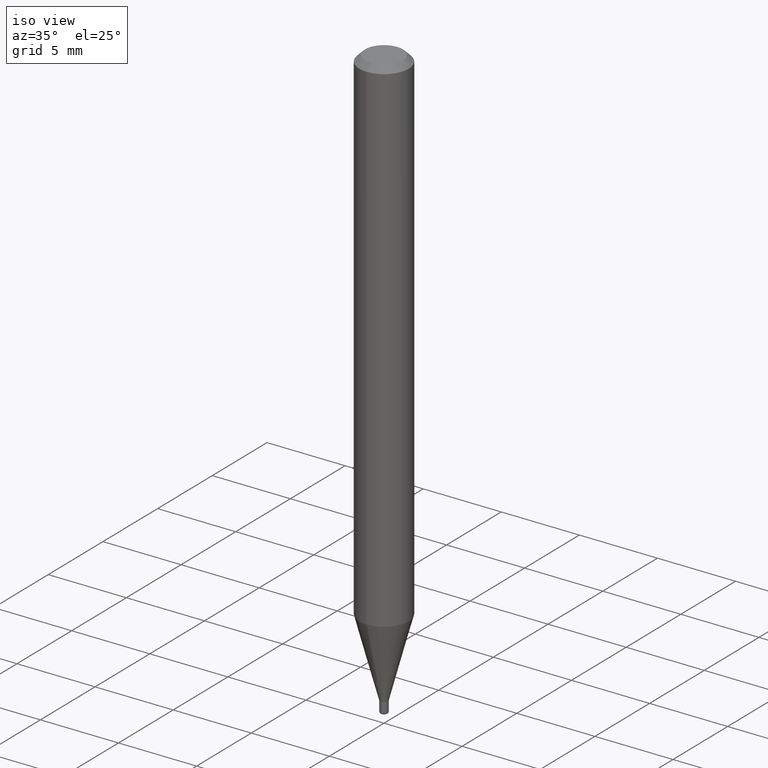
[diagram: clean part render]
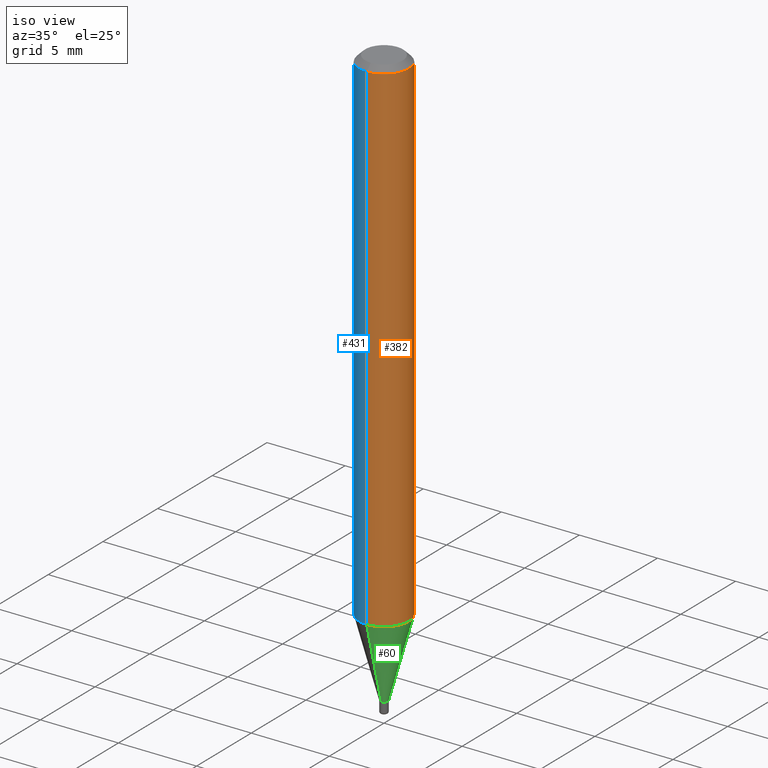
[diagram: same view with three faces highlighted in distinct colors, each labeled with its STEP entity id]
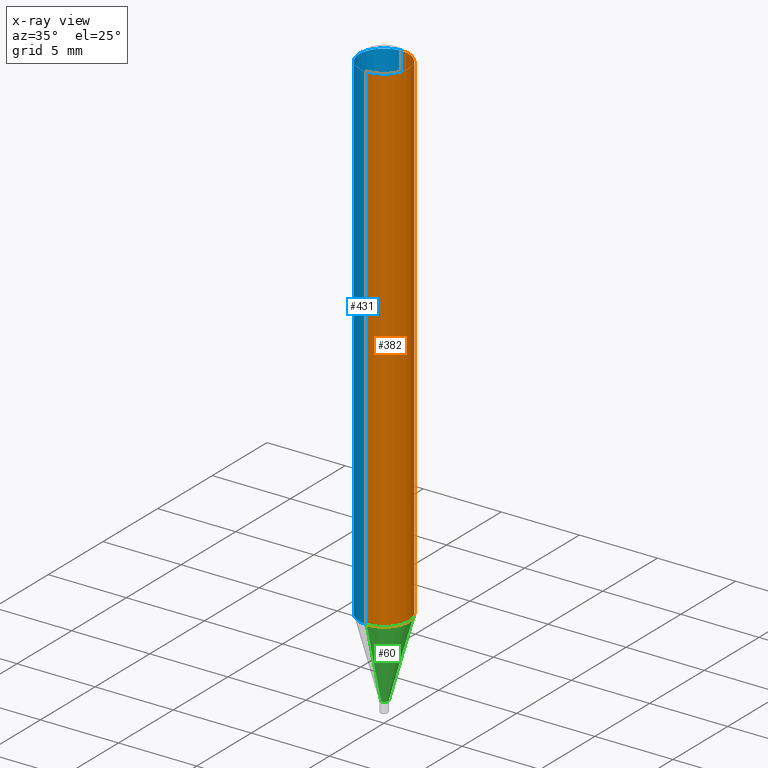
[diagram: x-ray of the same camera — body ghosted, the three highlighted faces saturated]
A machine part, iso view with three faces highlighted in distinct colors.
The next image is the same camera in x-ray (body ghosted, the three faces saturated) — at least one of them is partly hidden behind the body in this view.
Their STEP definitions:

[orange] entity #382 — the highlighted cylindrical surface (edge-blend (fillet) strip) has radius 1.5875 mm, axis along (-0, 0, 1).
#1 = CARTESIAN_POINT ( 'NONE',  ( 4.440892098500935790E-16, 0.06249999999999554523, -1.274067332602635050 ) ) ;
#2 = EDGE_LOOP ( 'NONE', ( #495, #21, #121, #81 ) ) ;
#21 = ORIENTED_EDGE ( 'NONE', *, *, #505, .T. ) ;
#24 = FACE_OUTER_BOUND ( 'NONE', #2, .T. ) ;
#29 = CARTESIAN_POINT ( 'NONE',  ( 0.000000000000000000, 0.000000000000000000, 0.000000000000000000 ) ) ;
#32 = CIRCLE ( 'NONE', #502, 0.06250000000000000000 ) ;
#50 = CARTESIAN_POINT ( 'NONE',  ( 3.115753968450635756E-29, -4.448293457665250698E-15, -1.274067332602634828 ) ) ;
#53 = DIRECTION ( 'NONE',  ( -2.445517508157003732E-29, 3.491411594847488118E-15, 1.000000000000000000 ) ) ;
#63 = VERTEX_POINT ( 'NONE', #1 ) ;
#64 = CYLINDRICAL_SURFACE ( 'NONE', #404, 0.06250000000000000000 ) ;
#81 = ORIENTED_EDGE ( 'NONE', *, *, #363, .F. ) ;
#102 = DIRECTION ( 'NONE',  ( -2.445517508157003732E-29, 3.491411594847488118E-15, 1.000000000000000000 ) ) ;
#109 = CARTESIAN_POINT ( 'NONE',  ( -4.364351673553916201E-16, -0.06250000000000000000, 2.182132246779680074E-16 ) ) ;
#110 = EDGE_CURVE ( 'NONE', #485, #63, #183, .T. ) ;
#121 = ORIENTED_EDGE ( 'NONE', *, *, #290, .F. ) ;
#134 = AXIS2_PLACEMENT_3D ( 'NONE', #50, #53, #257 ) ;
#183 = CIRCLE ( 'NONE', #134, 0.06250000000000000000 ) ;
#241 = DIRECTION ( 'NONE',  ( -2.445517508157003732E-29, 3.491411594847488118E-15, 1.000000000000000000 ) ) ;
#257 = DIRECTION ( 'NONE',  ( -6.982962677686265922E-15, -1.000000000000000000, 4.370956789862821150E-15 ) ) ;
#260 = LINE ( 'NONE', #376, #337 ) ;
#290 = EDGE_CURVE ( 'NONE', #446, #360, #32, .T. ) ;
#309 = LINE ( 'NONE', #109, #497 ) ;
#334 = DIRECTION ( 'NONE',  ( -2.445517508157004013E-29, 3.491411594847488118E-15, 1.000000000000000000 ) ) ;
#337 = VECTOR ( 'NONE', #334, 39.37007874015748143 ) ;
#351 = CARTESIAN_POINT ( 'NONE',  ( -4.364351673553912750E-16, -0.06250000000000005551, -0.01500000000000003240 ) ) ;
#360 = VERTEX_POINT ( 'NONE', #430 ) ;
#363 = EDGE_CURVE ( 'NONE', #485, #446, #309, .T. ) ;
#376 = CARTESIAN_POINT ( 'NONE',  ( 4.440892098500625669E-16, 0.06250000000000000000, -2.182132246779680074E-16 ) ) ;
#382 = ADVANCED_FACE ( 'NONE', ( #24 ), #64, .T. ) ;
#404 = AXIS2_PLACEMENT_3D ( 'NONE', #29, #102, #471 ) ;
#430 = CARTESIAN_POINT ( 'NONE',  ( 4.440892098500939734E-16, 0.06249999999999995143, -0.01500000000000046782 ) ) ;
#446 = VERTEX_POINT ( 'NONE', #351 ) ;
#471 = DIRECTION ( 'NONE',  ( -6.982962677686265922E-15, -1.000000000000000000, 3.491411594847488118E-15 ) ) ;
#472 = DIRECTION ( 'NONE',  ( -2.445517508157004013E-29, 3.491411594847488118E-15, 1.000000000000000000 ) ) ;
#485 = VERTEX_POINT ( 'NONE', #490 ) ;
#487 = DIRECTION ( 'NONE',  ( -6.982962677686265922E-15, -1.000000000000000000, 3.483106191921935554E-15 ) ) ;
#490 = CARTESIAN_POINT ( 'NONE',  ( -4.364351673553604601E-16, -0.06250000000000444089, -1.274067332602634384 ) ) ;
#495 = ORIENTED_EDGE ( 'NONE', *, *, #110, .T. ) ;
#497 = VECTOR ( 'NONE', #472, 39.37007874015748143 ) ;
#502 = AXIS2_PLACEMENT_3D ( 'NONE', #514, #241, #487 ) ;
#505 = EDGE_CURVE ( 'NONE', #63, #360, #260, .T. ) ;
#514 = CARTESIAN_POINT ( 'NONE',  ( 3.668276262235566117E-31, -5.237117392271319346E-17, -0.01500000000000024925 ) ) ;

[blue] entity #431 — the highlighted cylindrical surface (edge-blend (fillet) strip) has radius 1.5875 mm, axis along (-0, 0, 1).
#1 = CARTESIAN_POINT ( 'NONE',  ( 4.440892098500935790E-16, 0.06249999999999554523, -1.274067332602635050 ) ) ;
#3 = DIRECTION ( 'NONE',  ( -2.445517508157003732E-29, 3.491411594847488118E-15, 1.000000000000000000 ) ) ;
#33 = DIRECTION ( 'NONE',  ( -2.445517508157003732E-29, 3.491411594847488118E-15, 1.000000000000000000 ) ) ;
#63 = VERTEX_POINT ( 'NONE', #1 ) ;
#66 = DIRECTION ( 'NONE',  ( -6.982962677686265922E-15, -1.000000000000000000, 3.491411594847488118E-15 ) ) ;
#109 = CARTESIAN_POINT ( 'NONE',  ( -4.364351673553916201E-16, -0.06250000000000000000, 2.182132246779680074E-16 ) ) ;
#149 = ORIENTED_EDGE ( 'NONE', *, *, #505, .F. ) ;
#193 = AXIS2_PLACEMENT_3D ( 'NONE', #474, #305, #66 ) ;
#195 = DIRECTION ( 'NONE',  ( -6.982962677686265922E-15, -1.000000000000000000, 3.483106191921935554E-15 ) ) ;
#205 = CARTESIAN_POINT ( 'NONE',  ( 3.115753968450635756E-29, -4.448293457665250698E-15, -1.274067332602634828 ) ) ;
#221 = CIRCLE ( 'NONE', #358, 0.06250000000000000000 ) ;
#232 = EDGE_LOOP ( 'NONE', ( #149, #425, #364, #486 ) ) ;
#258 = EDGE_CURVE ( 'NONE', #360, #446, #221, .T. ) ;
#260 = LINE ( 'NONE', #376, #337 ) ;
#305 = DIRECTION ( 'NONE',  ( -2.445517508157003732E-29, 3.491411594847488118E-15, 1.000000000000000000 ) ) ;
#307 = FACE_OUTER_BOUND ( 'NONE', #232, .T. ) ;
#309 = LINE ( 'NONE', #109, #497 ) ;
#312 = CIRCLE ( 'NONE', #335, 0.06250000000000000000 ) ;
#323 = EDGE_CURVE ( 'NONE', #63, #485, #312, .T. ) ;
#334 = DIRECTION ( 'NONE',  ( -2.445517508157004013E-29, 3.491411594847488118E-15, 1.000000000000000000 ) ) ;
#335 = AXIS2_PLACEMENT_3D ( 'NONE', #205, #3, #445 ) ;
#337 = VECTOR ( 'NONE', #334, 39.37007874015748143 ) ;
#351 = CARTESIAN_POINT ( 'NONE',  ( -4.364351673553912750E-16, -0.06250000000000005551, -0.01500000000000003240 ) ) ;
#358 = AXIS2_PLACEMENT_3D ( 'NONE', #438, #33, #195 ) ;
#360 = VERTEX_POINT ( 'NONE', #430 ) ;
#363 = EDGE_CURVE ( 'NONE', #485, #446, #309, .T. ) ;
#364 = ORIENTED_EDGE ( 'NONE', *, *, #363, .T. ) ;
#376 = CARTESIAN_POINT ( 'NONE',  ( 4.440892098500625669E-16, 0.06250000000000000000, -2.182132246779680074E-16 ) ) ;
#425 = ORIENTED_EDGE ( 'NONE', *, *, #323, .T. ) ;
#430 = CARTESIAN_POINT ( 'NONE',  ( 4.440892098500939734E-16, 0.06249999999999995143, -0.01500000000000046782 ) ) ;
#431 = ADVANCED_FACE ( 'NONE', ( #307 ), #499, .T. ) ;
#438 = CARTESIAN_POINT ( 'NONE',  ( 3.668276262235566117E-31, -5.237117392271319346E-17, -0.01500000000000024925 ) ) ;
#445 = DIRECTION ( 'NONE',  ( -6.982962677686265922E-15, -1.000000000000000000, 4.370956789862821150E-15 ) ) ;
#446 = VERTEX_POINT ( 'NONE', #351 ) ;
#472 = DIRECTION ( 'NONE',  ( -2.445517508157004013E-29, 3.491411594847488118E-15, 1.000000000000000000 ) ) ;
#474 = CARTESIAN_POINT ( 'NONE',  ( 0.000000000000000000, 0.000000000000000000, 0.000000000000000000 ) ) ;
#485 = VERTEX_POINT ( 'NONE', #490 ) ;
#486 = ORIENTED_EDGE ( 'NONE', *, *, #258, .F. ) ;
#490 = CARTESIAN_POINT ( 'NONE',  ( -4.364351673553604601E-16, -0.06250000000000444089, -1.274067332602634384 ) ) ;
#497 = VECTOR ( 'NONE', #472, 39.37007874015748143 ) ;
#499 = CYLINDRICAL_SURFACE ( 'NONE', #193, 0.06250000000000000000 ) ;
#505 = EDGE_CURVE ( 'NONE', #63, #360, #260, .T. ) ;

[green] entity #60 — the highlighted conical surface has half-angle 15 deg.
#1 = CARTESIAN_POINT ( 'NONE',  ( 4.440892098500935790E-16, 0.06249999999999554523, -1.274067332602635050 ) ) ;
#23 = VECTOR ( 'NONE', #407, 39.37007874015748854 ) ;
#34 = DIRECTION ( 'NONE',  ( -2.445517508157003732E-29, 3.491411594847488118E-15, 1.000000000000000000 ) ) ;
#50 = CARTESIAN_POINT ( 'NONE',  ( 3.115753968450635756E-29, -4.448293457665250698E-15, -1.274067332602634828 ) ) ;
#53 = DIRECTION ( 'NONE',  ( -2.445517508157003732E-29, 3.491411594847488118E-15, 1.000000000000000000 ) ) ;
#60 = ADVANCED_FACE ( 'NONE', ( #405 ), #117, .T. ) ;
#63 = VERTEX_POINT ( 'NONE', #1 ) ;
#67 = CIRCLE ( 'NONE', #287, 0.01000000000000009041 ) ;
#76 = VECTOR ( 'NONE', #285, 39.37007874015748854 ) ;
#96 = EDGE_LOOP ( 'NONE', ( #204, #158, #297, #274 ) ) ;
#110 = EDGE_CURVE ( 'NONE', #485, #63, #183, .T. ) ;
#117 = CONICAL_SURFACE ( 'NONE', #394, 0.01000000000000009041, 0.2617993877991494633 ) ;
#134 = AXIS2_PLACEMENT_3D ( 'NONE', #50, #53, #257 ) ;
#142 = CARTESIAN_POINT ( 'NONE',  ( -6.982962677682733107E-17, -0.01000000000000522173, -1.470000000000000417 ) ) ;
#158 = ORIENTED_EDGE ( 'NONE', *, *, #267, .T. ) ;
#159 = LINE ( 'NONE', #237, #76 ) ;
#178 = VERTEX_POINT ( 'NONE', #217 ) ;
#183 = CIRCLE ( 'NONE', #134, 0.06250000000000000000 ) ;
#192 = CARTESIAN_POINT ( 'NONE',  ( 3.594910736990795879E-29, -5.132375044425808748E-15, -1.470000000000000417 ) ) ;
#201 = CARTESIAN_POINT ( 'NONE',  ( -6.982962677682733107E-17, -0.01000000000000522173, -1.470000000000000417 ) ) ;
#204 = ORIENTED_EDGE ( 'NONE', *, *, #280, .T. ) ;
#217 = CARTESIAN_POINT ( 'NONE',  ( 2.575717417130703193E-16, 0.009999999999994957367, -1.470000000000000417 ) ) ;
#233 = LINE ( 'NONE', #201, #23 ) ;
#237 = CARTESIAN_POINT ( 'NONE',  ( 7.105427357604659116E-17, 0.009999999999994957367, -1.470000000000000417 ) ) ;
#247 = EDGE_CURVE ( 'NONE', #415, #485, #233, .T. ) ;
#257 = DIRECTION ( 'NONE',  ( -6.982962677686265922E-15, -1.000000000000000000, 4.370956789862821150E-15 ) ) ;
#267 = EDGE_CURVE ( 'NONE', #178, #63, #159, .T. ) ;
#274 = ORIENTED_EDGE ( 'NONE', *, *, #247, .F. ) ;
#280 = EDGE_CURVE ( 'NONE', #415, #178, #67, .T. ) ;
#285 = DIRECTION ( 'NONE',  ( 1.839019923739594399E-15, 0.2588190451025241257, 0.9659258262890673130 ) ) ;
#287 = AXIS2_PLACEMENT_3D ( 'NONE', #192, #327, #366 ) ;
#297 = ORIENTED_EDGE ( 'NONE', *, *, #110, .F. ) ;
#327 = DIRECTION ( 'NONE',  ( -2.445517508157003732E-29, 3.491411594847488118E-15, 1.000000000000000000 ) ) ;
#366 = DIRECTION ( 'NONE',  ( -6.982962677686265133E-15, -1.000000000000000000, 0.000000000000000000 ) ) ;
#394 = AXIS2_PLACEMENT_3D ( 'NONE', #400, #34, #481 ) ;
#400 = CARTESIAN_POINT ( 'NONE',  ( 3.594910736990795879E-29, -5.132375044425808748E-15, -1.470000000000000417 ) ) ;
#405 = FACE_OUTER_BOUND ( 'NONE', #96, .T. ) ;
#407 = DIRECTION ( 'NONE',  ( -1.807323732225324223E-15, -0.2588190451025173533, 0.9659258262890690894 ) ) ;
#415 = VERTEX_POINT ( 'NONE', #142 ) ;
#481 = DIRECTION ( 'NONE',  ( -6.982962677686265133E-15, -1.000000000000000000, 0.000000000000000000 ) ) ;
#485 = VERTEX_POINT ( 'NONE', #490 ) ;
#490 = CARTESIAN_POINT ( 'NONE',  ( -4.364351673553604601E-16, -0.06250000000000444089, -1.274067332602634384 ) ) ;